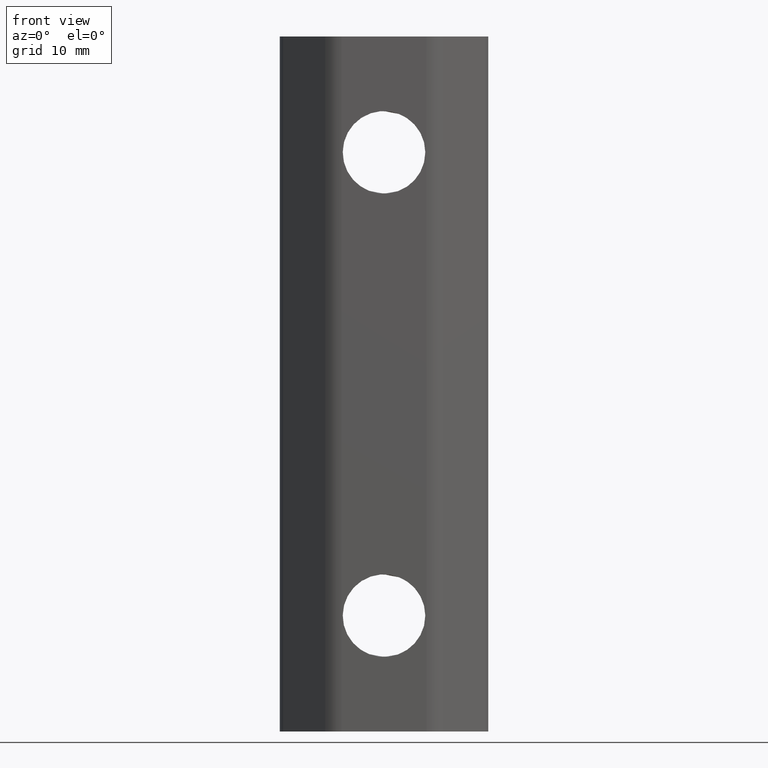
[diagram: clean part render]
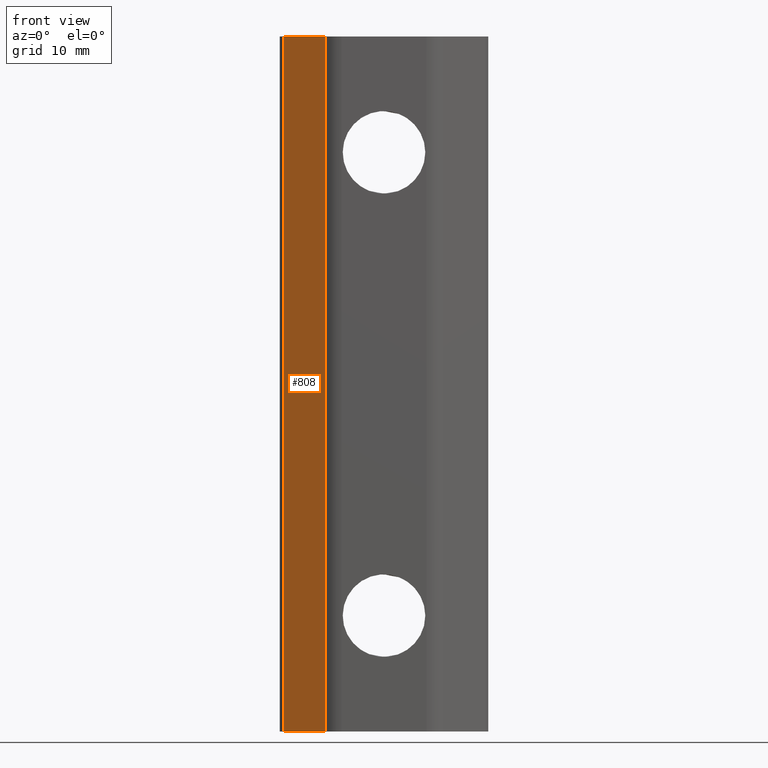
[diagram: same view with one face highlighted and labeled with its STEP entity id]
A machine part, front view. The second image highlights one B-rep face of the part: STEP entity #808.
In plain terms, the highlighted planar face has unit normal (-0.7071, -0.7071, 0).
Its self-contained STEP definition (entity closure, byte-faithful):
#490=CARTESIAN_POINT('',(-5.085786437626903,-5.617917225457337,-30.0));
#491=VERTEX_POINT('',#490);
#499=CARTESIAN_POINT('',(-8.707106781186548,-1.996596881897697,-30.0));
#500=VERTEX_POINT('',#499);
#501=CARTESIAN_POINT('',(-8.707106781186548,-1.996596881897697,-30.0));
#502=DIRECTION('',(0.707106781186548,-0.707106781186547,0.0));
#503=VECTOR('',#502,5.121320343559642);
#504=LINE('',#501,#503);
#505=EDGE_CURVE('',#500,#491,#504,.T.);
#765=CARTESIAN_POINT('',(-5.085786437626903,-5.617917225457337,30.0));
#766=VERTEX_POINT('',#765);
#774=CARTESIAN_POINT('',(-5.085786437626903,-5.617917225457337,30.0));
#775=DIRECTION('',(0.0,0.0,-1.0));
#776=VECTOR('',#775,60.0);
#777=LINE('',#774,#776);
#778=EDGE_CURVE('',#766,#491,#777,.T.);
#785=CARTESIAN_POINT('',(-5.085786437626903,-5.617917225457337,0.0));
#786=DIRECTION('',(-0.707106781186547,-0.707106781186548,0.0));
#787=DIRECTION('',(0.0,0.0,1.0));
#788=AXIS2_PLACEMENT_3D('',#785,#786,#787);
#789=PLANE('',#788);
#790=CARTESIAN_POINT('',(-8.707106781186548,-1.996596881897697,30.0));
#791=VERTEX_POINT('',#790);
#792=CARTESIAN_POINT('',(-5.085786437626903,-5.617917225457337,30.0));
#793=DIRECTION('',(-0.707106781186548,0.707106781186547,0.0));
#794=VECTOR('',#793,5.121320343559642);
#795=LINE('',#792,#794);
#796=EDGE_CURVE('',#766,#791,#795,.T.);
#797=ORIENTED_EDGE('',*,*,#796,.T.);
#798=CARTESIAN_POINT('',(-8.707106781186548,-1.996596881897697,30.0));
#799=DIRECTION('',(0.0,0.0,-1.0));
#800=VECTOR('',#799,60.0);
#801=LINE('',#798,#800);
#802=EDGE_CURVE('',#791,#500,#801,.T.);
#803=ORIENTED_EDGE('',*,*,#802,.T.);
#804=ORIENTED_EDGE('',*,*,#505,.T.);
#805=ORIENTED_EDGE('',*,*,#778,.F.);
#806=EDGE_LOOP('',(#797,#803,#804,#805));
#807=FACE_OUTER_BOUND('',#806,.T.);
#808=ADVANCED_FACE('',(#807),#789,.T.);